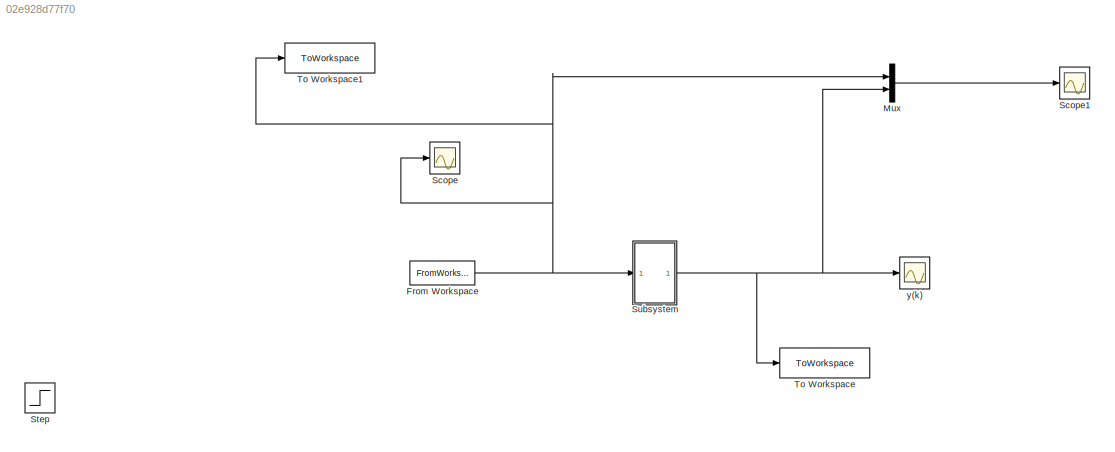
MODEL slx_02e928d77f70
KIND model
CONFIG AbsTol = auto
CONFIG EnableMultiTasking = off
CONFIG FixedStep = auto
CONFIG MaxStep = auto
CONFIG MinStep = auto
CONFIG RelTol = 1e-3
CONFIG SampleTimeConstraint = Unconstrained
CONFIG SolverName = VariableStepAuto
CONFIG StartTime = 0.0
CONFIG StopTime = 1000
BLOCK [FromWorkspace] From Workspace
  SampleTime = 0.1
  VariableName = aprbs
BLOCK [Mux] Mux
  DisplayOption = bar
  Inputs = 2
  Ports = [2, 1]
BLOCK [Scope] Scope
  Floating = off
  NumInputPorts = 1
  Ports = [1]
  ScopeSpecificationString = Simulink.scopes.TimeScopeBlockCfg('CurrentConfiguration', extmgr.ConfigurationSet(extmgr.Configuration('Core','General UI',true),extmgr.Configuration('Core','Source UI',true),extmgr.Configuration('Sources','WiredSimulink',true,'DataLoggingVariableName','ScopeData1'),extmgr.Configuration('Visuals','Time Domain',true),extmgr.Configuration('Tools','Plot Navigation',true),extmgr.Configuration('Tools',...<+40ch>
BLOCK [Scope] Scope1
  Floating = off
  NumInputPorts = 1
  Ports = [1]
  ScopeSpecificationString = Simulink.scopes.TimeScopeBlockCfg('CurrentConfiguration', extmgr.ConfigurationSet(extmgr.Configuration('Core','General UI',true),extmgr.Configuration('Core','Source UI',true),extmgr.Configuration('Sources','WiredSimulink',true,'DataLoggingVariableName','ScopeData2'),extmgr.Configuration('Visuals','Time Domain',true,'SerializedDisplays',{struct('MinYLimReal','0.35128','MaxYLimReal','5.14517','YLabe...<+1456ch>
BLOCK [Step] Step
  SampleTime = 0
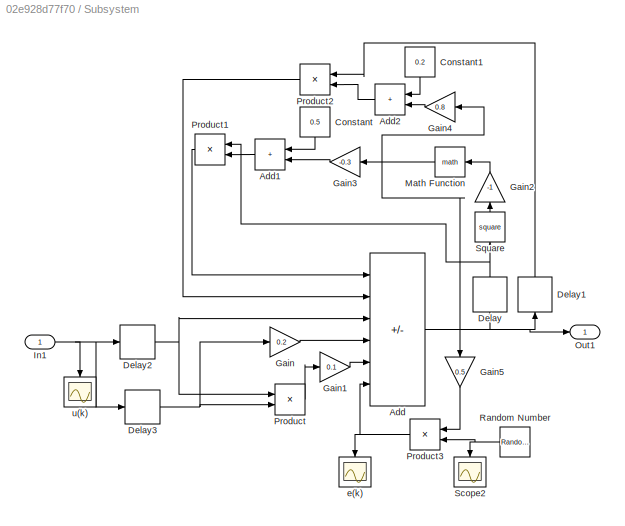
BLOCK [SubSystem] Subsystem
  Ports = [1, 1]
  RequestExecContextInheritance = off
BLOCK [Sum] Subsystem/Add
  IconShape = rectangular
  Inputs = +-++++
  Ports = [6, 1]
BLOCK [Sum] Subsystem/Add1
  IconShape = rectangular
  NameLocation = top
  Ports = [2, 1]
BLOCK [Sum] Subsystem/Add2
  IconShape = rectangular
  NameLocation = top
  Ports = [2, 1]
BLOCK [Constant] Subsystem/Constant
  NameLocation = left
  Value = 0.5
BLOCK [Constant] Subsystem/Constant1
  NameLocation = left
  Value = 0.2
BLOCK [Delay] Subsystem/Delay
  DelayLength = 1
  InitialCondition = 0
  InputPortMap = u0
  NameLocation = right
  Ports = [1, 1]
BLOCK [Delay] Subsystem/Delay1
  InputPortMap = u0
  NameLocation = right
  Ports = [1, 1]
BLOCK [Delay] Subsystem/Delay2
  DelayLength = 1
  InitialCondition = 0
  InputPortMap = u0
  Ports = [1, 1]
BLOCK [Delay] Subsystem/Delay3
  InputPortMap = u0
  Ports = [1, 1]
BLOCK [Gain] Subsystem/Gain
  Gain = 0.2
BLOCK [Gain] Subsystem/Gain1
  Gain = 0.1
BLOCK [Gain] Subsystem/Gain2
  Gain = -1
  NameLocation = right
BLOCK [Gain] Subsystem/Gain3
  Gain = -0.3
  NameLocation = top
BLOCK [Gain] Subsystem/Gain4
  Gain = 0.8
  NameLocation = top
BLOCK [Gain] Subsystem/Gain5
  Gain = 0.5
  NameLocation = left
BLOCK [Inport] Subsystem/In1
BLOCK [Math] Subsystem/Math Function
  NameLocation = top
  Ports = [1, 1]
BLOCK [Outport] Subsystem/Out1
BLOCK [Product] Subsystem/Product
  Ports = [2, 1]
BLOCK [Product] Subsystem/Product1
  NameLocation = top
  Ports = [2, 1]
BLOCK [Product] Subsystem/Product2
  NameLocation = top
  Ports = [2, 1]
BLOCK [Product] Subsystem/Product3
  NameLocation = top
  Ports = [2, 1]
BLOCK [RandomNumber] Subsystem/Random Number
  NameLocation = top
  SampleTime = 0.1
BLOCK [Scope] Subsystem/Scope2
  Floating = off
  NameLocation = left
  NumInputPorts = 1
  Ports = [1]
  ScopeSpecificationString = Simulink.scopes.TimeScopeBlockCfg('CurrentConfiguration', extmgr.ConfigurationSet(extmgr.Configuration('Core','General UI',true),extmgr.Configuration('Core','Source UI',true),extmgr.Configuration('Sources','WiredSimulink',true,'DataLoggingVariableName','ScopeData2'),extmgr.Configuration('Visuals','Time Domain',true,'SerializedDisplays',{struct('MinYLimReal','-4.84744','MaxYLimReal','4.78388','YLab...<+1397ch>
BLOCK [Math] Subsystem/Square
  NameLocation = right
  Operator = square
  Ports = [1, 1]
BLOCK [Scope] Subsystem/e(k)
  Floating = off
  NameLocation = left
  NumInputPorts = 1
  Ports = [1]
  ScopeSpecificationString = Simulink.scopes.TimeScopeBlockCfg('CurrentConfiguration', extmgr.ConfigurationSet(extmgr.Configuration('Core','General UI',true),extmgr.Configuration('Core','Source UI',true),extmgr.Configuration('Sources','WiredSimulink',true,'DataLoggingVariableName','ScopeData1'),extmgr.Configuration('Visuals','Time Domain',true,'SerializedDisplays',{struct('MinYLimReal','-1.43854','MaxYLimReal','1.48688','YLab...<+1367ch>
BLOCK [Scope] Subsystem/u(k)
  Floating = off
  NameLocation = left
  NumInputPorts = 1
  Ports = [1]
  ScopeSpecificationString = Simulink.scopes.TimeScopeBlockCfg('CurrentConfiguration', extmgr.ConfigurationSet(extmgr.Configuration('Core','General UI',true),extmgr.Configuration('Core','Source UI',true),extmgr.Configuration('Sources','WiredSimulink',true,'DataLoggingVariableName','ScopeData3'),extmgr.Configuration('Visuals','Time Domain',true,'SerializedDisplays',{struct('MinYLimReal','-2.4974','MaxYLimReal','2.49745','YLabe...<+1389ch>
BLOCK [ToWorkspace] To Workspace
  FixptAsFi = on
  MaxDataPoints = inf
  Ports = [1]
  SampleTime = -1
  VariableName = salida
BLOCK [ToWorkspace] To Workspace1
  FixptAsFi = on
  MaxDataPoints = inf
  Ports = [1]
  SampleTime = -1
  VariableName = entrada
BLOCK [Scope] y(k)
  Floating = off
  NumInputPorts = 1
  Ports = [1]
  ScopeSpecificationString = Simulink.scopes.TimeScopeBlockCfg('CurrentConfiguration', extmgr.ConfigurationSet(extmgr.Configuration('Core','General UI',true),extmgr.Configuration('Core','Source UI',true),extmgr.Configuration('Sources','WiredSimulink',true),extmgr.Configuration('Visuals','Time Domain',true,'SerializedDisplays',{struct('MinYLimReal','-3.12647','MaxYLimReal','5.22723','YLabelReal','','MinYLimMag','0.00000','MaxY...<+1402ch>
NET From Workspace:1 -> Mux:1, Scope:1, Subsystem:1, To Workspace1:1
LINE Mux:1 -> Scope1:1
LINE Subsystem/Add1:1 -> Subsystem/Product1:2
LINE Subsystem/Add2:1 -> Subsystem/Product2:2
NET Subsystem/Add:1 -> Subsystem/Delay1:1, Subsystem/Delay:1, Subsystem/Out1:1
LINE Subsystem/Constant1:1 -> Subsystem/Add2:1
LINE Subsystem/Constant:1 -> Subsystem/Add1:1
LINE Subsystem/Delay1:1 -> Subsystem/Product2:1
NET Subsystem/Delay2:1 -> Subsystem/Add:3, Subsystem/Product:1
NET Subsystem/Delay3:1 -> Subsystem/Gain:1, Subsystem/Product:2
NET Subsystem/Delay:1 -> Subsystem/Product1:1, Subsystem/Square:1
LINE Subsystem/Gain1:1 -> Subsystem/Add:5
LINE Subsystem/Gain2:1 -> Subsystem/Math Function:1
LINE Subsystem/Gain3:1 -> Subsystem/Add1:2
LINE Subsystem/Gain4:1 -> Subsystem/Add2:2
LINE Subsystem/Gain5:1 -> Subsystem/Product3:1
LINE Subsystem/Gain:1 -> Subsystem/Add:4
NET Subsystem/In1:1 -> Subsystem/Delay2:1, Subsystem/Delay3:1, Subsystem/u(k):1
NET Subsystem/Math Function:1 -> Subsystem/Gain3:1, Subsystem/Gain4:1, Subsystem/Gain5:1
LINE Subsystem/Product1:1 -> Subsystem/Add:1
LINE Subsystem/Product2:1 -> Subsystem/Add:2
NET Subsystem/Product3:1 -> Subsystem/Add:6, Subsystem/e(k):1
LINE Subsystem/Product:1 -> Subsystem/Gain1:1
NET Subsystem/Random Number:1 -> Subsystem/Product3:2, Subsystem/Scope2:1
LINE Subsystem/Square:1 -> Subsystem/Gain2:1
NET Subsystem:1 -> Mux:2, To Workspace:1, y(k):1
note: NET lines group one-source signal fan-out (src -> all destinations, sorted); 1:1 wires keep LINE
